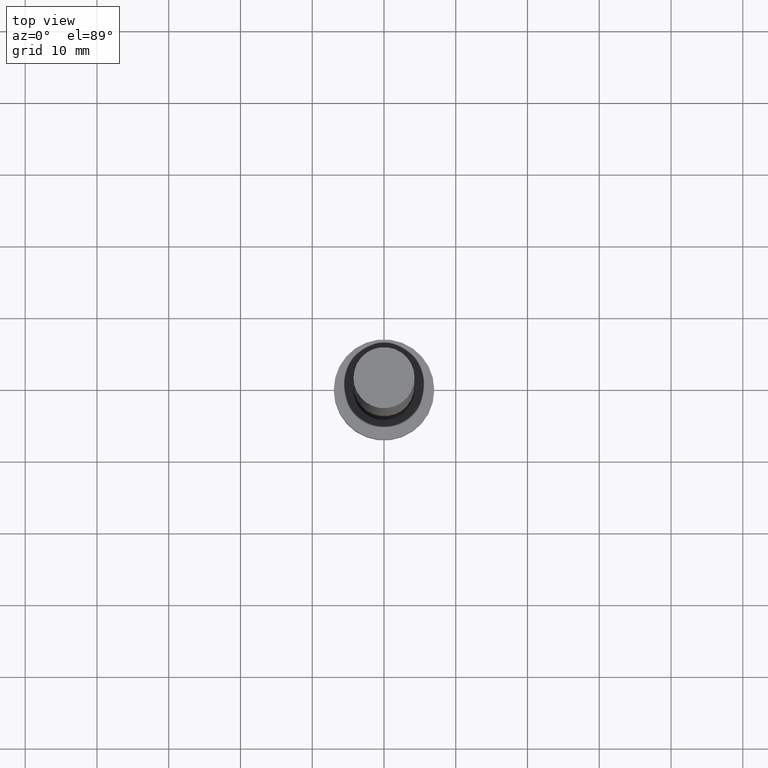
[diagram: clean part render]
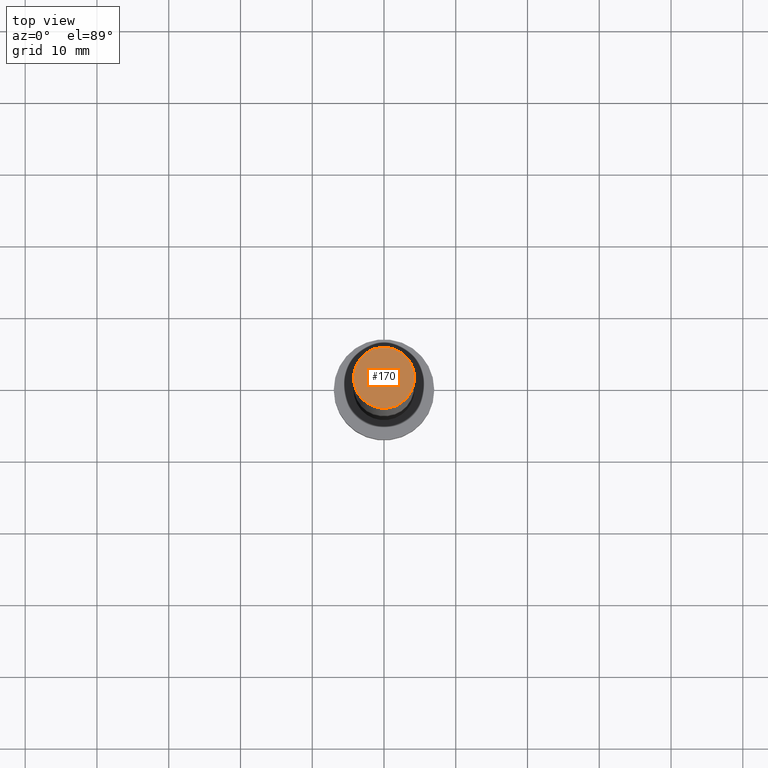
[diagram: same view with one face highlighted and labeled with its STEP entity id]
A machine part, top view. The second image highlights one B-rep face of the part: STEP entity #170.
In plain terms, the highlighted planar face has unit normal (0, 0, 1).
Its self-contained STEP definition (entity closure, byte-faithful):
#5 = CARTESIAN_POINT ( 'NONE',  ( -4.250000000000000000, 0.000000000000000000, 100.0000000000000000 ) ) ;
#8 = DIRECTION ( 'NONE',  ( 0.000000000000000000, 0.000000000000000000, 1.000000000000000000 ) ) ;
#31 = CARTESIAN_POINT ( 'NONE',  ( 0.000000000000000000, 0.000000000000000000, 100.0000000000000000 ) ) ;
#42 = DIRECTION ( 'NONE',  ( 0.000000000000000000, 0.000000000000000000, 1.000000000000000000 ) ) ;
#43 = CARTESIAN_POINT ( 'NONE',  ( 4.250000000000000000, 5.204748896376250699E-16, 100.0000000000000000 ) ) ;
#61 = PLANE ( 'NONE',  #68 ) ;
#67 = EDGE_LOOP ( 'NONE', ( #227, #120 ) ) ;
#68 = AXIS2_PLACEMENT_3D ( 'NONE', #199, #163, #168 ) ;
#79 = FACE_OUTER_BOUND ( 'NONE', #67, .T. ) ;
#86 = DIRECTION ( 'NONE',  ( 1.000000000000000000, 0.000000000000000000, 0.000000000000000000 ) ) ;
#87 = CIRCLE ( 'NONE', #104, 4.250000000000000000 ) ;
#98 = CIRCLE ( 'NONE', #243, 4.250000000000000000 ) ;
#100 = EDGE_CURVE ( 'NONE', #125, #189, #98, .T. ) ;
#104 = AXIS2_PLACEMENT_3D ( 'NONE', #177, #42, #184 ) ;
#120 = ORIENTED_EDGE ( 'NONE', *, *, #139, .T. ) ;
#125 = VERTEX_POINT ( 'NONE', #5 ) ;
#139 = EDGE_CURVE ( 'NONE', #189, #125, #87, .T. ) ;
#163 = DIRECTION ( 'NONE',  ( 0.000000000000000000, 0.000000000000000000, 1.000000000000000000 ) ) ;
#168 = DIRECTION ( 'NONE',  ( 1.000000000000000000, 0.000000000000000000, -0.000000000000000000 ) ) ;
#170 = ADVANCED_FACE ( 'NONE', ( #79 ), #61, .T. ) ;
#177 = CARTESIAN_POINT ( 'NONE',  ( 0.000000000000000000, 0.000000000000000000, 100.0000000000000000 ) ) ;
#184 = DIRECTION ( 'NONE',  ( 1.000000000000000000, 0.000000000000000000, 0.000000000000000000 ) ) ;
#189 = VERTEX_POINT ( 'NONE', #43 ) ;
#199 = CARTESIAN_POINT ( 'NONE',  ( 0.000000000000000000, 0.000000000000000000, 100.0000000000000000 ) ) ;
#227 = ORIENTED_EDGE ( 'NONE', *, *, #100, .T. ) ;
#243 = AXIS2_PLACEMENT_3D ( 'NONE', #31, #8, #86 ) ;